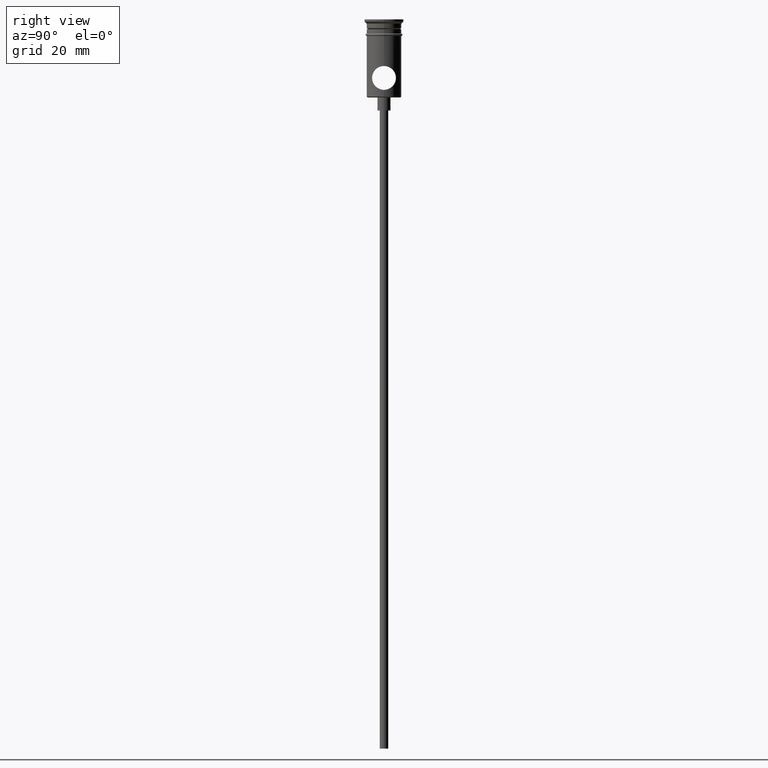
[diagram: clean part render]
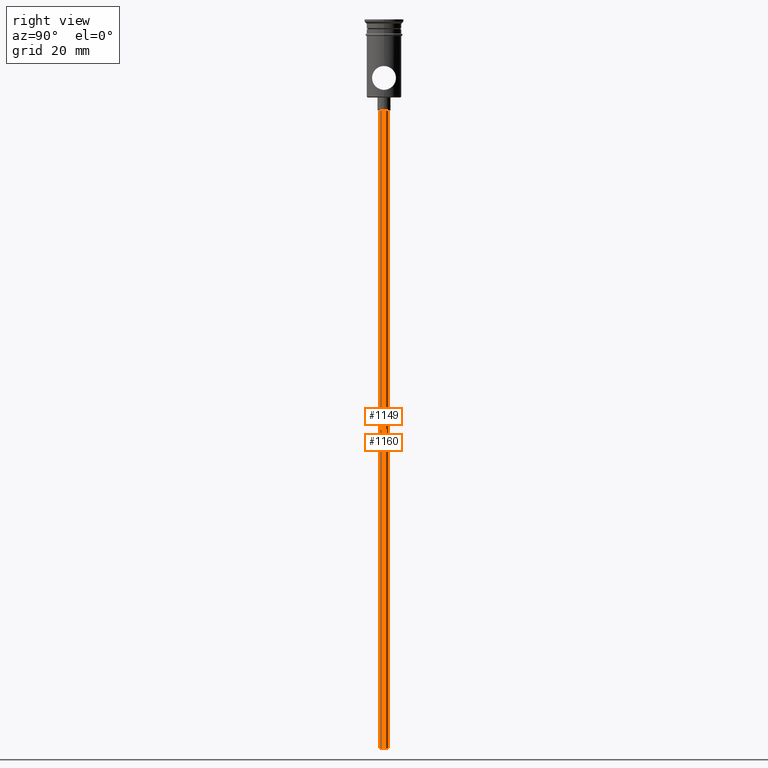
[diagram: same view with one multi-face feature highlighted, each face labeled with its STEP entity id]
A machine part, right view. The highlighted faces form ONE feature: a constant-radius fillet chain: 2 tangent blend faces with common blend radius 1 mm. The faces share edges in the B-rep.
Their STEP definitions:
[1] entity #1160 (Cylinder):
#6 = CARTESIAN_POINT ( 'NONE',  ( -0.9999999999999997780, 1.224646799147352961E-16, -20.99999999999999645 ) ) ;
#86 = CARTESIAN_POINT ( 'NONE',  ( 0.000000000000000000, 0.000000000000000000, -167.9999999999999716 ) ) ;
#117 = LINE ( 'NONE', #438, #550 ) ;
#156 = CARTESIAN_POINT ( 'NONE',  ( 0.9999999999999997780, 0.000000000000000000, -167.9999999999999716 ) ) ;
#157 = AXIS2_PLACEMENT_3D ( 'NONE', #86, #732, #506 ) ;
#184 = AXIS2_PLACEMENT_3D ( 'NONE', #301, #733, #1260 ) ;
#185 = FACE_OUTER_BOUND ( 'NONE', #1324, .T. ) ;
#189 = ORIENTED_EDGE ( 'NONE', *, *, #1028, .T. ) ;
#196 = EDGE_CURVE ( 'NONE', #422, #429, #292, .T. ) ;
#292 = CIRCLE ( 'NONE', #1092, 0.9999999999999997780 ) ;
#301 = CARTESIAN_POINT ( 'NONE',  ( 0.000000000000000000, 0.000000000000000000, -20.99999999999999645 ) ) ;
#353 = EDGE_CURVE ( 'NONE', #429, #962, #1087, .T. ) ;
#403 = VECTOR ( 'NONE', #1222, 1000.000000000000000 ) ;
#408 = CARTESIAN_POINT ( 'NONE',  ( 0.000000000000000000, 0.000000000000000000, -167.9999999999999716 ) ) ;
#422 = VERTEX_POINT ( 'NONE', #464 ) ;
#429 = VERTEX_POINT ( 'NONE', #156 ) ;
#433 = CARTESIAN_POINT ( 'NONE',  ( 0.9999999999999997780, 0.000000000000000000, -20.99999999999999645 ) ) ;
#438 = CARTESIAN_POINT ( 'NONE',  ( -0.9999999999999997780, 1.224646799147352961E-16, -167.9999999999999716 ) ) ;
#464 = CARTESIAN_POINT ( 'NONE',  ( -0.9999999999999997780, 1.224646799147352961E-16, -167.9999999999999716 ) ) ;
#506 = DIRECTION ( 'NONE',  ( 1.000000000000000000, 0.000000000000000000, 0.000000000000000000 ) ) ;
#550 = VECTOR ( 'NONE', #882, 1000.000000000000000 ) ;
#556 = CARTESIAN_POINT ( 'NONE',  ( 0.9999999999999997780, 0.000000000000000000, -167.9999999999999716 ) ) ;
#654 = ORIENTED_EDGE ( 'NONE', *, *, #858, .T. ) ;
#704 = CIRCLE ( 'NONE', #184, 0.9999999999999997780 ) ;
#732 = DIRECTION ( 'NONE',  ( -0.000000000000000000, -0.000000000000000000, 1.000000000000000000 ) ) ;
#733 = DIRECTION ( 'NONE',  ( 0.000000000000000000, 0.000000000000000000, -1.000000000000000000 ) ) ;
#858 = EDGE_CURVE ( 'NONE', #1017, #962, #704, .T. ) ;
#882 = DIRECTION ( 'NONE',  ( -0.000000000000000000, -0.000000000000000000, 1.000000000000000000 ) ) ;
#934 = CYLINDRICAL_SURFACE ( 'NONE', #157, 0.9999999999999997780 ) ;
#962 = VERTEX_POINT ( 'NONE', #433 ) ;
#977 = DIRECTION ( 'NONE',  ( -1.000000000000000000, 0.000000000000000000, 0.000000000000000000 ) ) ;
#1017 = VERTEX_POINT ( 'NONE', #6 ) ;
#1022 = ORIENTED_EDGE ( 'NONE', *, *, #353, .F. ) ;
#1028 = EDGE_CURVE ( 'NONE', #422, #1017, #117, .T. ) ;
#1087 = LINE ( 'NONE', #556, #403 ) ;
#1092 = AXIS2_PLACEMENT_3D ( 'NONE', #408, #1294, #977 ) ;
#1160 = ADVANCED_FACE ( 'NONE', ( #185 ), #934, .T. ) ;
#1222 = DIRECTION ( 'NONE',  ( -0.000000000000000000, -0.000000000000000000, 1.000000000000000000 ) ) ;
#1260 = DIRECTION ( 'NONE',  ( -1.000000000000000000, 0.000000000000000000, 0.000000000000000000 ) ) ;
#1294 = DIRECTION ( 'NONE',  ( 0.000000000000000000, 0.000000000000000000, -1.000000000000000000 ) ) ;
#1324 = EDGE_LOOP ( 'NONE', ( #1327, #189, #654, #1022 ) ) ;
#1327 = ORIENTED_EDGE ( 'NONE', *, *, #196, .F. ) ;
[2] entity #1149 (Cylinder):
#6 = CARTESIAN_POINT ( 'NONE',  ( -0.9999999999999997780, 1.224646799147352961E-16, -20.99999999999999645 ) ) ;
#69 = CYLINDRICAL_SURFACE ( 'NONE', #409, 0.9999999999999997780 ) ;
#75 = CARTESIAN_POINT ( 'NONE',  ( 0.000000000000000000, 0.000000000000000000, -20.99999999999999645 ) ) ;
#78 = CARTESIAN_POINT ( 'NONE',  ( 0.000000000000000000, 0.000000000000000000, -167.9999999999999716 ) ) ;
#117 = LINE ( 'NONE', #438, #550 ) ;
#156 = CARTESIAN_POINT ( 'NONE',  ( 0.9999999999999997780, 0.000000000000000000, -167.9999999999999716 ) ) ;
#215 = DIRECTION ( 'NONE',  ( -1.000000000000000000, 0.000000000000000000, 0.000000000000000000 ) ) ;
#330 = CARTESIAN_POINT ( 'NONE',  ( 0.000000000000000000, 0.000000000000000000, -167.9999999999999716 ) ) ;
#353 = EDGE_CURVE ( 'NONE', #429, #962, #1087, .T. ) ;
#403 = VECTOR ( 'NONE', #1222, 1000.000000000000000 ) ;
#409 = AXIS2_PLACEMENT_3D ( 'NONE', #78, #1365, #497 ) ;
#410 = CIRCLE ( 'NONE', #1214, 0.9999999999999997780 ) ;
#414 = EDGE_LOOP ( 'NONE', ( #1206, #790, #1057, #796 ) ) ;
#422 = VERTEX_POINT ( 'NONE', #464 ) ;
#429 = VERTEX_POINT ( 'NONE', #156 ) ;
#433 = CARTESIAN_POINT ( 'NONE',  ( 0.9999999999999997780, 0.000000000000000000, -20.99999999999999645 ) ) ;
#438 = CARTESIAN_POINT ( 'NONE',  ( -0.9999999999999997780, 1.224646799147352961E-16, -167.9999999999999716 ) ) ;
#464 = CARTESIAN_POINT ( 'NONE',  ( -0.9999999999999997780, 1.224646799147352961E-16, -167.9999999999999716 ) ) ;
#497 = DIRECTION ( 'NONE',  ( 1.000000000000000000, 0.000000000000000000, 0.000000000000000000 ) ) ;
#550 = VECTOR ( 'NONE', #882, 1000.000000000000000 ) ;
#556 = CARTESIAN_POINT ( 'NONE',  ( 0.9999999999999997780, 0.000000000000000000, -167.9999999999999716 ) ) ;
#720 = DIRECTION ( 'NONE',  ( 0.000000000000000000, 0.000000000000000000, -1.000000000000000000 ) ) ;
#790 = ORIENTED_EDGE ( 'NONE', *, *, #1240, .F. ) ;
#796 = ORIENTED_EDGE ( 'NONE', *, *, #1406, .T. ) ;
#882 = DIRECTION ( 'NONE',  ( -0.000000000000000000, -0.000000000000000000, 1.000000000000000000 ) ) ;
#962 = VERTEX_POINT ( 'NONE', #433 ) ;
#1017 = VERTEX_POINT ( 'NONE', #6 ) ;
#1028 = EDGE_CURVE ( 'NONE', #422, #1017, #117, .T. ) ;
#1049 = FACE_OUTER_BOUND ( 'NONE', #414, .T. ) ;
#1057 = ORIENTED_EDGE ( 'NONE', *, *, #353, .T. ) ;
#1079 = DIRECTION ( 'NONE',  ( -1.000000000000000000, 0.000000000000000000, 0.000000000000000000 ) ) ;
#1087 = LINE ( 'NONE', #556, #403 ) ;
#1099 = CIRCLE ( 'NONE', #1235, 0.9999999999999997780 ) ;
#1149 = ADVANCED_FACE ( 'NONE', ( #1049 ), #69, .T. ) ;
#1202 = DIRECTION ( 'NONE',  ( 0.000000000000000000, 0.000000000000000000, -1.000000000000000000 ) ) ;
#1206 = ORIENTED_EDGE ( 'NONE', *, *, #1028, .F. ) ;
#1214 = AXIS2_PLACEMENT_3D ( 'NONE', #75, #720, #1079 ) ;
#1222 = DIRECTION ( 'NONE',  ( -0.000000000000000000, -0.000000000000000000, 1.000000000000000000 ) ) ;
#1235 = AXIS2_PLACEMENT_3D ( 'NONE', #330, #1202, #215 ) ;
#1240 = EDGE_CURVE ( 'NONE', #429, #422, #1099, .T. ) ;
#1365 = DIRECTION ( 'NONE',  ( -0.000000000000000000, -0.000000000000000000, 1.000000000000000000 ) ) ;
#1406 = EDGE_CURVE ( 'NONE', #962, #1017, #410, .T. ) ;